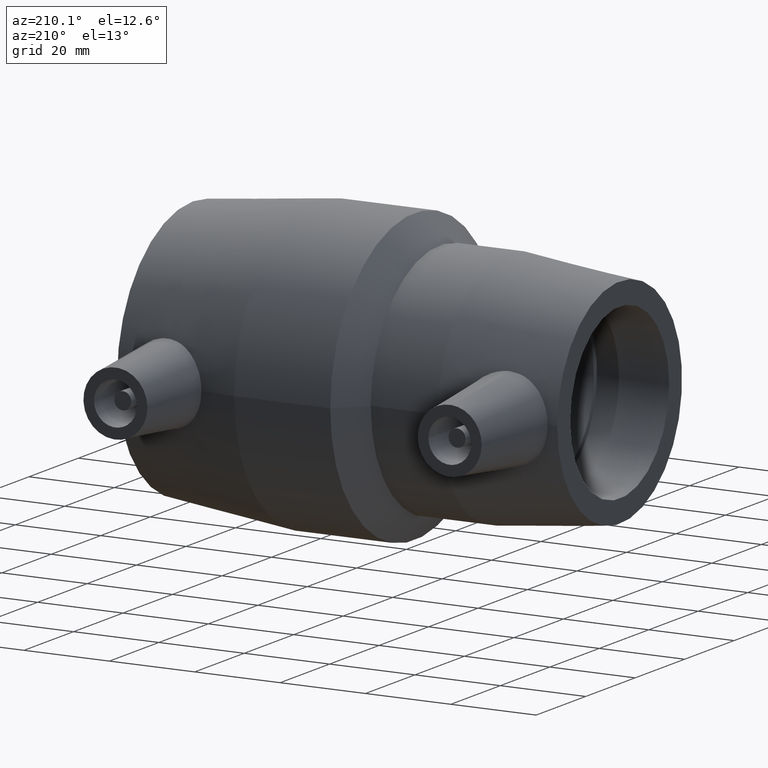
[diagram: clean part render]
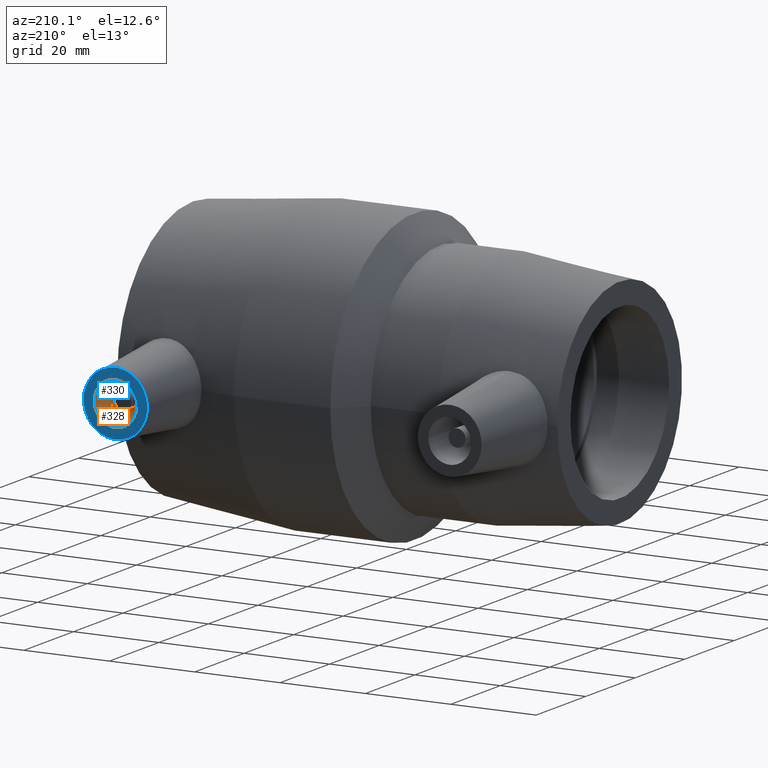
[diagram: same view with the hole feature highlighted: cylindrical wall and planar end face, labeled with their STEP entity ids]
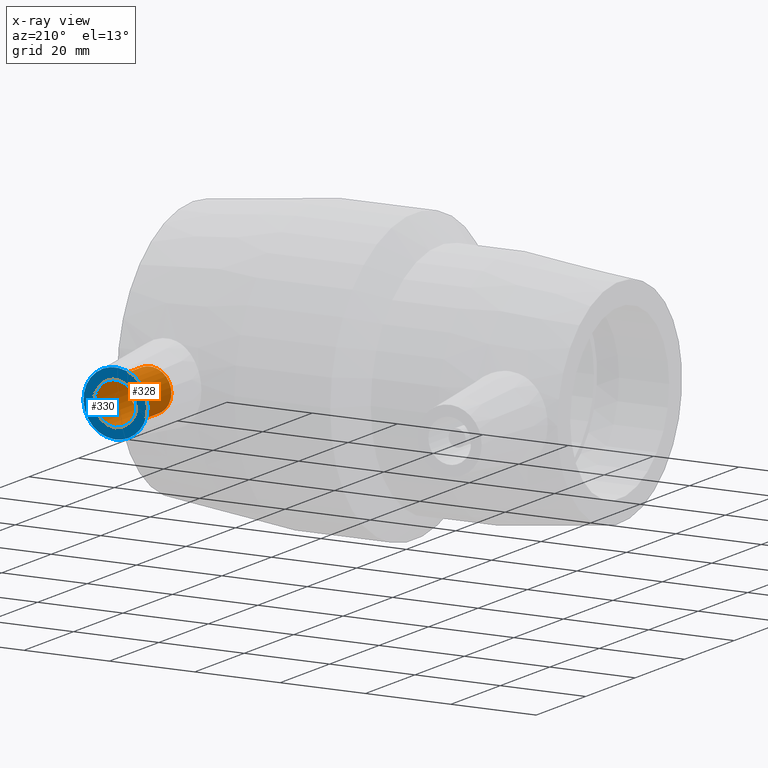
[diagram: x-ray of the same camera — body ghosted, the hole faces saturated]
A machine part, auxiliary view. The highlighted faces form one hole feature of diameter 10 mm: the cylindrical wall (entity #328, orange) and its adjacent planar end face (entity #330, blue) — they share a circular edge in the B-rep.
The next image is the same camera in x-ray (body ghosted, the hole faces saturated) — the bore reads through the body.
Wall:
#26=FACE_BOUND('',#103,.T.);
#57=CYLINDRICAL_SURFACE('',#364,5.);
#70=FACE_OUTER_BOUND('',#102,.T.);
#102=EDGE_LOOP('',(#255));
#103=EDGE_LOOP('',(#256));
#163=CIRCLE('',#365,5.);
#164=CIRCLE('',#366,5.);
#192=VERTEX_POINT('',#551);
#193=VERTEX_POINT('',#553);
#223=EDGE_CURVE('',#192,#192,#163,.T.);
#224=EDGE_CURVE('',#193,#193,#164,.T.);
#255=ORIENTED_EDGE('',*,*,#223,.T.);
#256=ORIENTED_EDGE('',*,*,#224,.F.);
#328=ADVANCED_FACE('',(#70,#26),#57,.F.);
#364=AXIS2_PLACEMENT_3D('',#550,#432,#433);
#365=AXIS2_PLACEMENT_3D('',#552,#434,#435);
#366=AXIS2_PLACEMENT_3D('',#554,#436,#437);
#432=DIRECTION('center_axis',(0.,-1.,0.));
#433=DIRECTION('ref_axis',(1.,0.,0.));
#434=DIRECTION('center_axis',(0.,-1.,0.));
#435=DIRECTION('ref_axis',(1.,0.,0.));
#436=DIRECTION('center_axis',(0.,-1.,0.));
#437=DIRECTION('ref_axis',(1.,0.,0.));
#550=CARTESIAN_POINT('Origin',(38.,52.,0.));
#551=CARTESIAN_POINT('',(33.,38.,6.12323399573677E-16));
#552=CARTESIAN_POINT('Origin',(38.,38.,0.));
#553=CARTESIAN_POINT('',(33.,52.,6.12323399573677E-16));
#554=CARTESIAN_POINT('Origin',(38.,52.,0.));
End face:
#28=FACE_BOUND('',#107,.T.);
#72=FACE_OUTER_BOUND('',#106,.T.);
#106=EDGE_LOOP('',(#259));
#107=EDGE_LOOP('',(#260));
#164=CIRCLE('',#366,5.);
#165=CIRCLE('',#369,7.5);
#193=VERTEX_POINT('',#553);
#194=VERTEX_POINT('',#557);
#224=EDGE_CURVE('',#193,#193,#164,.T.);
#225=EDGE_CURVE('',#194,#194,#165,.T.);
#259=ORIENTED_EDGE('',*,*,#225,.F.);
#260=ORIENTED_EDGE('',*,*,#224,.T.);
#316=PLANE('',#368);
#330=ADVANCED_FACE('',(#72,#28),#316,.T.);
#366=AXIS2_PLACEMENT_3D('',#554,#436,#437);
#368=AXIS2_PLACEMENT_3D('',#556,#440,#441);
#369=AXIS2_PLACEMENT_3D('',#558,#442,#443);
#436=DIRECTION('center_axis',(0.,-1.,0.));
#437=DIRECTION('ref_axis',(1.,0.,0.));
#440=DIRECTION('center_axis',(0.,1.,0.));
#441=DIRECTION('ref_axis',(0.,0.,1.));
#442=DIRECTION('center_axis',(0.,-1.,0.));
#443=DIRECTION('ref_axis',(1.,0.,0.));
#553=CARTESIAN_POINT('',(33.,52.,6.12323399573677E-16));
#554=CARTESIAN_POINT('Origin',(38.,52.,0.));
#556=CARTESIAN_POINT('Origin',(38.,52.,1.2335811384724E-16));
#557=CARTESIAN_POINT('',(30.5,52.,9.18485099360515E-16));
#558=CARTESIAN_POINT('Origin',(38.,52.,0.));